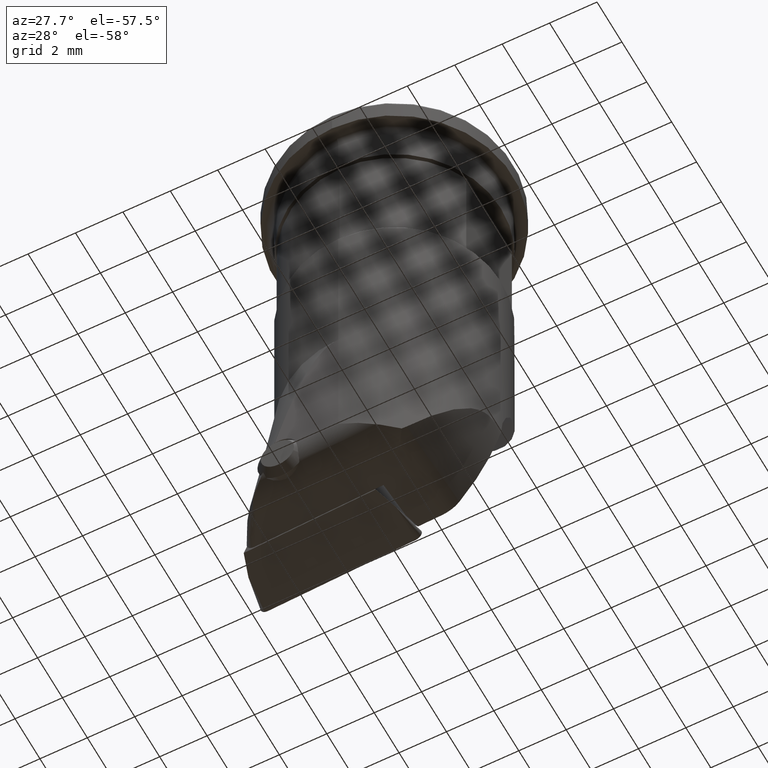
[diagram: clean part render]
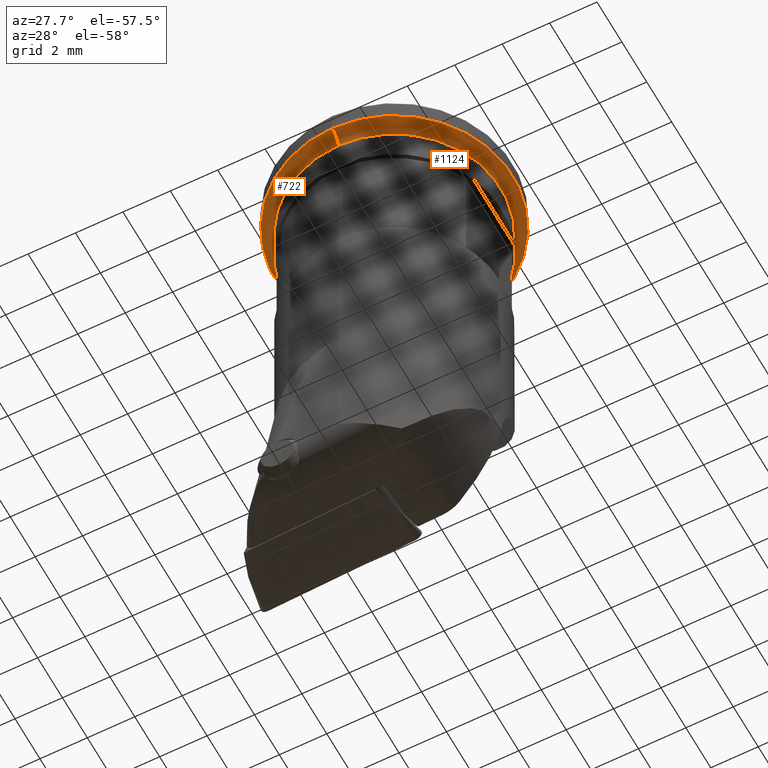
[diagram: same view with one multi-face feature highlighted, each face labeled with its STEP entity id]
A machine part, auxiliary view. The highlighted faces form ONE feature: a constant-radius fillet chain: 2 tangent blend faces with common blend radius 0.5 mm. The faces share edges in the B-rep.
Their STEP definitions:
[1] entity #1124 (Torus):
#726=EDGE_CURVE('NONE',#1286,#1316,#1984,.T.);
#874=VERTEX_POINT('NONE',#2151);
#1112=EDGE_CURVE('NONE',#874,#1478,#2409,.T.);
#1124=ADVANCED_FACE('NONE',(#2424),#2425,.F.);
#1176=EDGE_CURVE('NONE',#874,#1286,#2482,.T.);
#1190=EDGE_CURVE('NONE',#1316,#1478,#2496,.F.);
#1286=VERTEX_POINT('NONE',#2602);
#1316=VERTEX_POINT('NONE',#2637);
#1478=VERTEX_POINT('NONE',#2815);
#1984=CIRCLE('',#3425,0.5);
#2151=CARTESIAN_POINT('',(5.51091059616309E-016,4.5,-1.5));
#2409=CIRCLE('',#4865,0.5);
#2424=FACE_OUTER_BOUND('',#4898,.T.);
#2425=TOROIDAL_SURFACE('',#4899,5.0,0.5);
#2482=CIRCLE('',#5004,4.5);
#2496=CIRCLE('',#5023,5.0);
#2602=CARTESIAN_POINT('',(0.0,-4.5,-1.5));
#2637=CARTESIAN_POINT('',(0.0,-5.0,-1.0));
#2815=CARTESIAN_POINT('',(6.12323399573677E-016,5.0,-1.0));
#3425=AXIS2_PLACEMENT_3D('',#6667,#6668,#6669);
#4865=AXIS2_PLACEMENT_3D('',#7152,#7153,#7154);
#4898=EDGE_LOOP('',(#7181,#7182,#7183,#7184));
#4899=AXIS2_PLACEMENT_3D('',#7185,#7186,#7187);
#5004=AXIS2_PLACEMENT_3D('',#7260,#7261,#7262);
#5023=AXIS2_PLACEMENT_3D('',#7270,#7271,#7272);
#6667=CARTESIAN_POINT('',(6.12323399573676E-016,-5.0,-1.5));
#6668=DIRECTION('',(1.0,1.22464679914735E-016,0.0));
#6669=DIRECTION('',(1.22464679914735E-016,-1.0,-0.0));
#7152=CARTESIAN_POINT('',(0.0,5.0,-1.5));
#7153=DIRECTION('',(-1.0,0.0,0.0));
#7154=DIRECTION('',(0.0,1.0,0.0));
#7181=ORIENTED_EDGE('',*,*,#726,.F.);
#7182=ORIENTED_EDGE('',*,*,#1176,.F.);
#7183=ORIENTED_EDGE('',*,*,#1112,.T.);
#7184=ORIENTED_EDGE('',*,*,#1190,.F.);
#7185=CARTESIAN_POINT('',(0.0,0.0,-1.5));
#7186=DIRECTION('',(0.0,0.0,-1.0));
#7187=DIRECTION('',(0.0,1.0,0.0));
#7260=CARTESIAN_POINT('',(0.0,0.0,-1.5));
#7261=DIRECTION('',(0.0,0.0,-1.0));
#7262=DIRECTION('',(0.0,-1.0,0.0));
#7270=CARTESIAN_POINT('',(0.0,0.0,-1.0));
#7271=DIRECTION('',(0.0,0.0,-1.0));
#7272=DIRECTION('',(0.0,-1.0,0.0));
[2] entity #722 (Torus):
#722=ADVANCED_FACE('NONE',(#1979),#1980,.F.);
#726=EDGE_CURVE('NONE',#1286,#1316,#1984,.T.);
#874=VERTEX_POINT('NONE',#2151);
#1112=EDGE_CURVE('NONE',#874,#1478,#2409,.T.);
#1286=VERTEX_POINT('NONE',#2602);
#1316=VERTEX_POINT('NONE',#2637);
#1478=VERTEX_POINT('NONE',#2815);
#1688=EDGE_CURVE('NONE',#1286,#874,#3048,.T.);
#1758=EDGE_CURVE('NONE',#1478,#1316,#3128,.T.);
#1979=FACE_OUTER_BOUND('',#3418,.T.);
#1980=TOROIDAL_SURFACE('',#3419,5.0,0.5);
#1984=CIRCLE('',#3425,0.5);
#2151=CARTESIAN_POINT('',(5.51091059616309E-016,4.5,-1.5));
#2409=CIRCLE('',#4865,0.5);
#2602=CARTESIAN_POINT('',(0.0,-4.5,-1.5));
#2637=CARTESIAN_POINT('',(0.0,-5.0,-1.0));
#2815=CARTESIAN_POINT('',(6.12323399573677E-016,5.0,-1.0));
#3048=CIRCLE('',#6248,4.5);
#3128=CIRCLE('',#6381,5.0);
#3418=EDGE_LOOP('',(#6657,#6658,#6659,#6660));
#3419=AXIS2_PLACEMENT_3D('',#6661,#6662,#6663);
#3425=AXIS2_PLACEMENT_3D('',#6667,#6668,#6669);
#4865=AXIS2_PLACEMENT_3D('',#7152,#7153,#7154);
#6248=AXIS2_PLACEMENT_3D('',#7943,#7944,#7945);
#6381=AXIS2_PLACEMENT_3D('',#8052,#8053,#8054);
#6657=ORIENTED_EDGE('',*,*,#1688,.F.);
#6658=ORIENTED_EDGE('',*,*,#726,.T.);
#6659=ORIENTED_EDGE('',*,*,#1758,.F.);
#6660=ORIENTED_EDGE('',*,*,#1112,.F.);
#6661=CARTESIAN_POINT('',(0.0,0.0,-1.5));
#6662=DIRECTION('',(0.0,0.0,-1.0));
#6663=DIRECTION('',(0.0,1.0,0.0));
#6667=CARTESIAN_POINT('',(6.12323399573676E-016,-5.0,-1.5));
#6668=DIRECTION('',(1.0,1.22464679914735E-016,0.0));
#6669=DIRECTION('',(1.22464679914735E-016,-1.0,-0.0));
#7152=CARTESIAN_POINT('',(0.0,5.0,-1.5));
#7153=DIRECTION('',(-1.0,0.0,0.0));
#7154=DIRECTION('',(0.0,1.0,0.0));
#7943=CARTESIAN_POINT('',(0.0,0.0,-1.5));
#7944=DIRECTION('',(0.0,0.0,-1.0));
#7945=DIRECTION('',(0.0,-1.0,0.0));
#8052=CARTESIAN_POINT('',(0.0,0.0,-1.0));
#8053=DIRECTION('',(-0.0,0.0,1.0));
#8054=DIRECTION('',(0.0,-1.0,0.0));